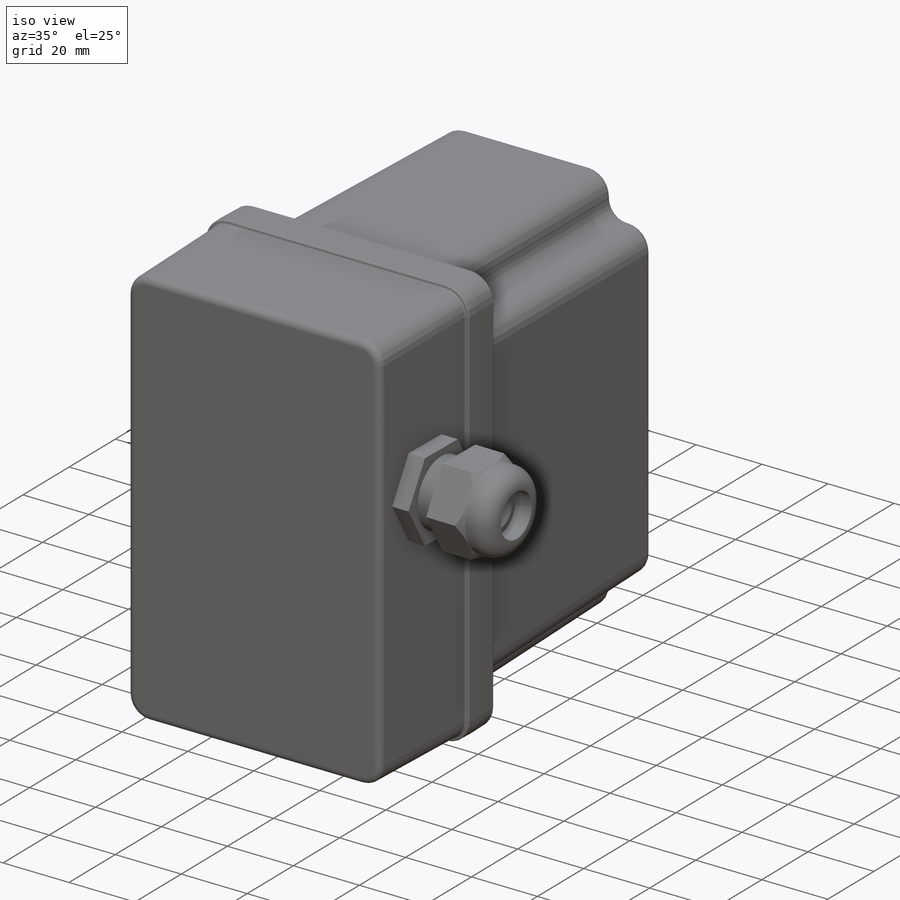
[diagram: iso view]
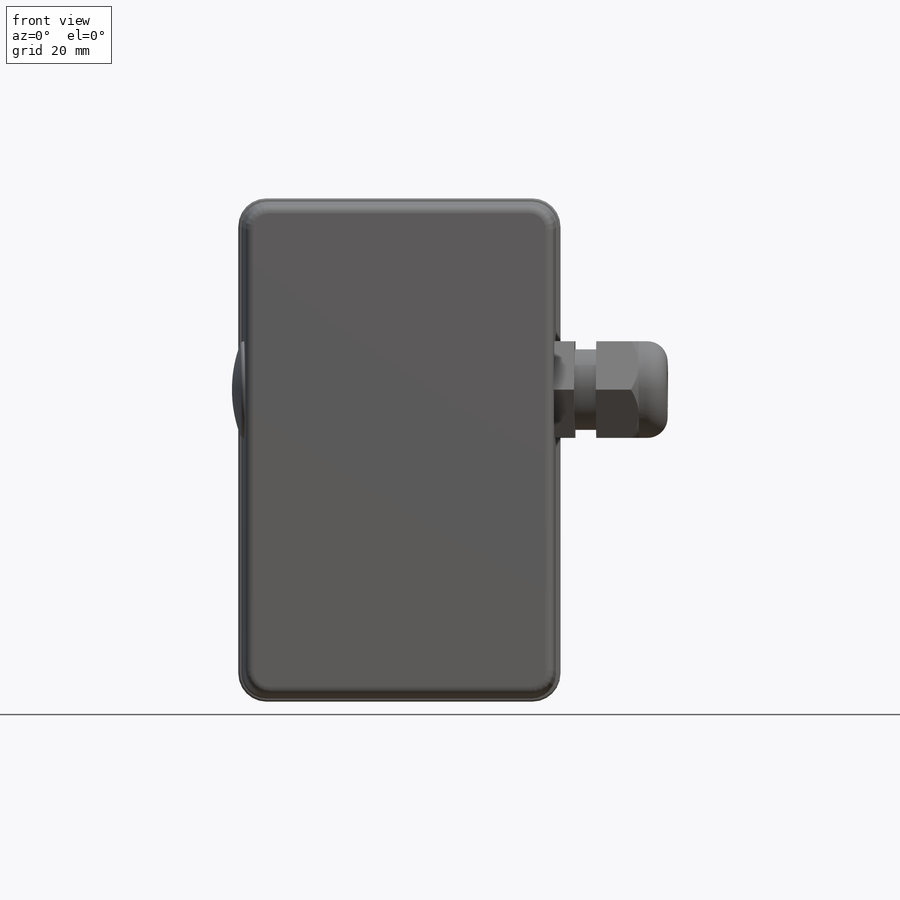
[diagram: front view]
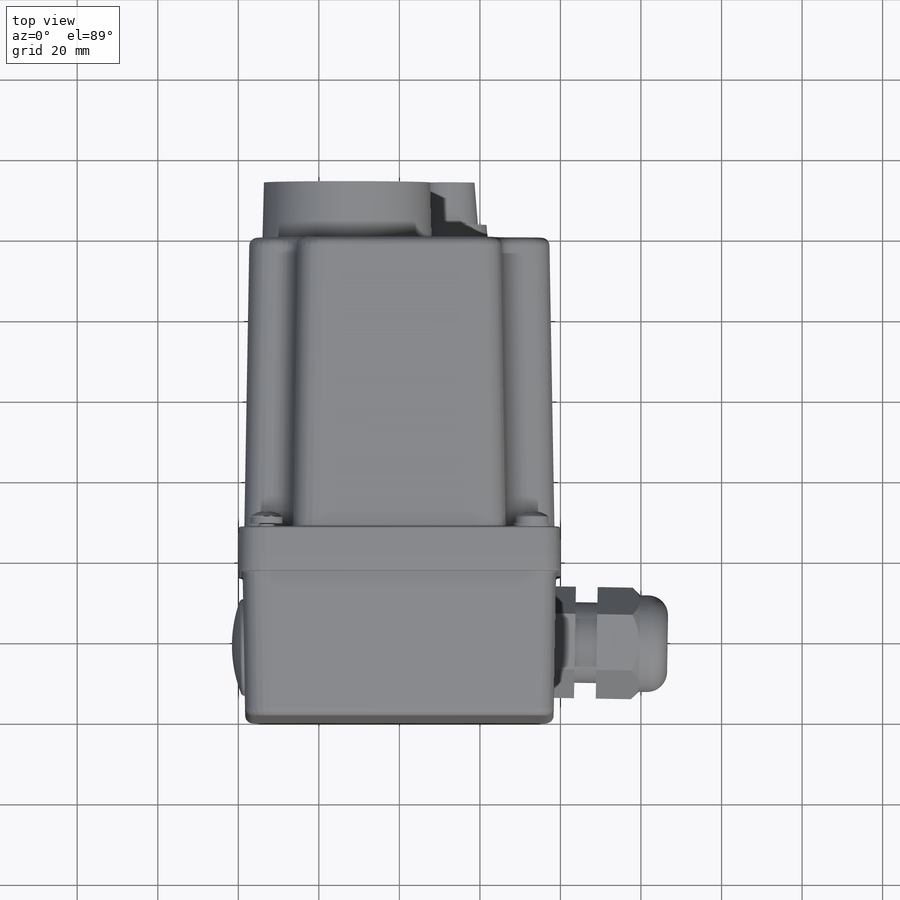
[diagram: top view]
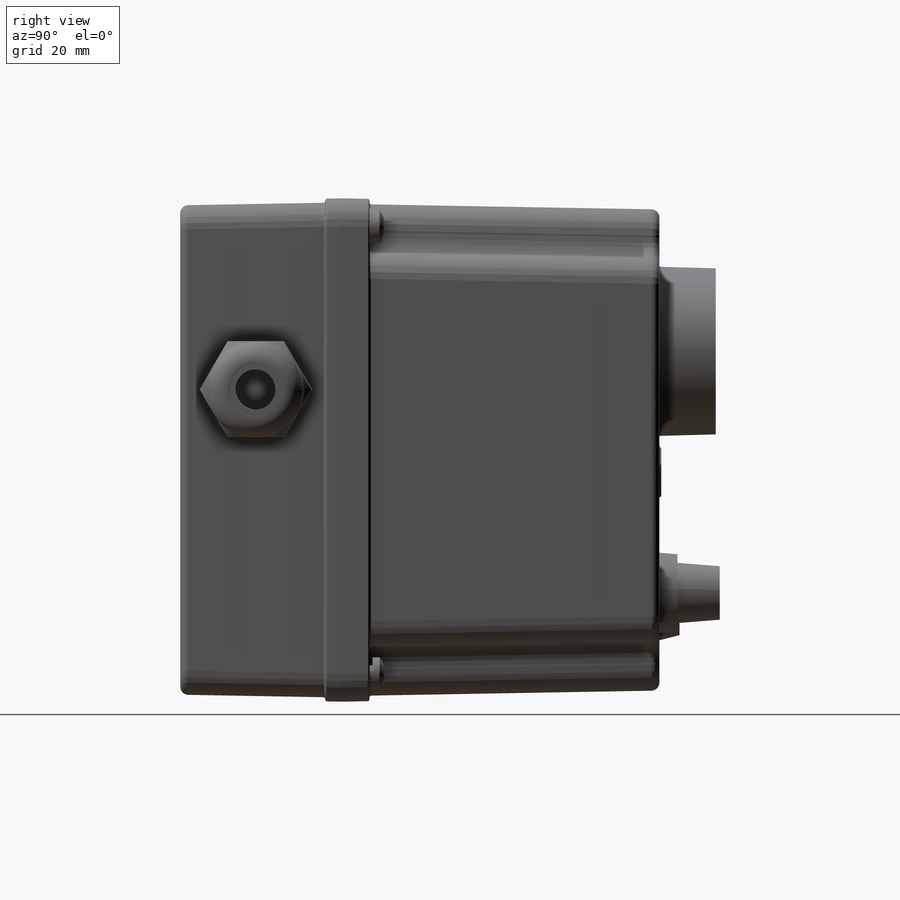
[diagram: right view]
SOLIDWORKS PART (.sldprt)
format: sldprt  version: not decoded by parser v0  size: 1,421,312 bytes
history: native  units: mm
features: sketch x20, fillet x10, extrude x9, plane x8, revolve x4, cut_revolve x2, move_body x2, sweep x2, material x1, thread x1, pattern_linear x1, boolean_combine x1 + 8 further entries (+24 scaffold rows collapsed; 11 parser-record rows omitted)
feature tree (104):
  scaffold x24  (default folders/planes/origin — collapsed)
  material  "Materiál <není určen>"
  "Těla ploch"
  plane  "Horní"
  plane  "Přední"
  plane  "Pravá"
  parser-record x11  (decoder bookkeeping rows leaked as tree rows — omitted from the tree; the rows remain in map.json)
  sketch  "Skica1"  dims[D1=80.0mm D2=125.0mm D3=40.0mm]
  extrude  "Přidat vysunutím1"  Depth=4mm
  sketch  "Skica2"  dims[D1=77.8mm D2=122.8mm]
  extrude  "Přidat vysunutím2"  Depth=40mm
  fillet  "Zaoblit1"  Radius=6mm
  fillet  "Zaoblit2"  Radius=7mm
  fillet  "Zaoblit4"  Radius=0.5mm
  fillet  "Zaoblit5"  Radius=2mm
  sketch  "Skica9"  dims[D1=47.5mm D2=21.0mm D3=24.0mm]
  extrude  "Přidat vysunutím7"  Depth=28mm
  plane  "Rovina4"
  sketch  "Skica10"  dims[c1.D1=20.0mm c1.D2=5.0mm c1.D3=7.0mm c1.D4=17.6mm c1.D5=~1.810057mm c2.D5=45.0deg c2.D6=10.0mm c2.D7=13.0mm c2.D8=5.0mm c2.D9=1.0mm]
  cut_revolve  "Odebrat rotací1"  Angle=360deg
  fillet  "Zaoblit11"  Radius=5mm
  sketch  "Skica11"  dims[c1.D1=1.0mm c1.D3=100.0mm c1.D2=3.0mm c2.D3=24.0mm]
  revolve  "Rotovat3"  Angle=360deg
  extrude  "Přidat vysunutím3"  [1 undecoded]
  sketch  "Skica1<2>"  dims[D1=7.0mm D3=1.0deg]
  sketch  "Skica4"  dims[c1.D7=5.5mm c1.D8=5.5mm c1.D1=122.0mm c1.D2=77.0mm c1.D3=17.5mm c1.D4=17.5mm c1.D5=66.0mm c1.D6=111.0mm c2.D1=77.0mm c2.D2=122.0mm c2.D9=12.0mm]
  extrude  "Přidat vysunutím4"  Depth=79mm
  fillet  "Zaoblit6"  Radius=6.5mm
  fillet  "Zaoblit7"  Radius=5mm
  fillet  "Zaoblit8"  Radius=7mm
  fillet  "Zaoblit9"  Radius=2mm
  sketch  "Skica5"  dims[c1.D1=42.0mm c1.D2=42.0mm c1.D3=42.0mm c2.D2=13.0mm c2.D3=38.0mm]
  sketch  "Skica6"  dims[D1=6.0mm D2=4.0mm D3=8.0mm D4=12.0mm D5=24.0mm]
  extrude  "Přidat vysunutím6"  Depth=0.5mm
  fillet  "Zaoblit10"  Radius=0.5mm
  extrude  "Přidat vysunutím5"  Depth=14mm
  plane  "Rovina2"  Offset=12mm
  sketch  "Skica7"  dims[D1=20.0mm D2=4.5mm D3=15.0mm D4=15.0mm D5=13.3mm D6=60.0mm]
  revolve  "Rotovat1"  Angle=360deg
  plane  "Rovina3"  Offset=12mm
  sketch  "Skica8"  dims[D1=5.0mm D2=13.0mm D3=15.5mm D4=64.0mm]
  revolve  "Rotovat2"  Angle=360deg
  "plain washer normal grade a_iso"
  "pan head cross recess screw_iso"
  thread  "ThreadCosmetic-pan head cross recess screw_iso"  Diameter=6.6mm  [1 undecoded]
  move_body  "Tělo-Přesunout/kopírovat1"
  "Sjednocená2"
  "Soustředná2"
  move_body  "Tělo-Přesunout/kopírovat2"
  "Sjednocená3"
  "Soustředná3"
  pattern_linear  "LinPole1"  Count1=2 Count2=2 Spacing1=111mm Spacing2=66mm
  sketch  "Skica13"  dims[D1=60.0mm]
  extrude  "Přidat vysunutím8"  Depth=24mm
  sketch  "Skica15"  dims[c1.D1=~6.529397mm c2.D1=30.0deg c2.D2=1.5mm c2.D3=8.0mm c2.D4=0.5mm c2.D5=46.0mm]
  cut_revolve  "Odebrat rotací3"  Angle=360deg
  sketch  "Skica16"  dims[c1.D1=~15.576051mm c1.D2=8.7mm c2.D1=33.0mm]
  plane  "Rovina5"
  sketch  "Skica17"  dims[c1.D3=~15.341856mm c1.D2=100.0mm c1.D1=425.0mm c2.D2=210.0mm c2.D3=2.0mm c2.D4=210.0mm c2.D1=422.0mm c3.D4=210.0mm]
  plane  "Rovina6"
  sketch  "Skica18"  dims[c1.D3=~15.341856mm c1.D2=100.0mm c1.D1=425.0mm c2.D2=210.0mm c2.D3=2.0mm c2.D4=210.0mm c2.D1=422.0mm c3.D2=410.0mm c3.D3=2.0mm c4.D2=410.0mm]
  sketch  "Skica19"  dims[D1=350.0mm D2=10.0mm D3=3.0mm]
  revolve  "Rotovat4"  Angle=360deg
  sweep  "Táhnout po křivce1"
  sweep  "Táhnout po křivce2"
  sketch  "Skica16<3>"
  sketch  "Skica20"
  "Skica-pole1"
  boolean_combine  "Kombinovat1"
  sketch  "Skica22"  dims[D1=40.0mm]
  extrude  "Přidat vysunutím9"  Depth=1mm
decode coverage: 44 of 52 modeling features carry decoded parameters; 8 rows unclassified (native names shown)
note: ~ marks probable driven/reference dimensions
note: 2 parameter values undecoded
note: suppression state not decoded; provenance and decode notes live in map.json
